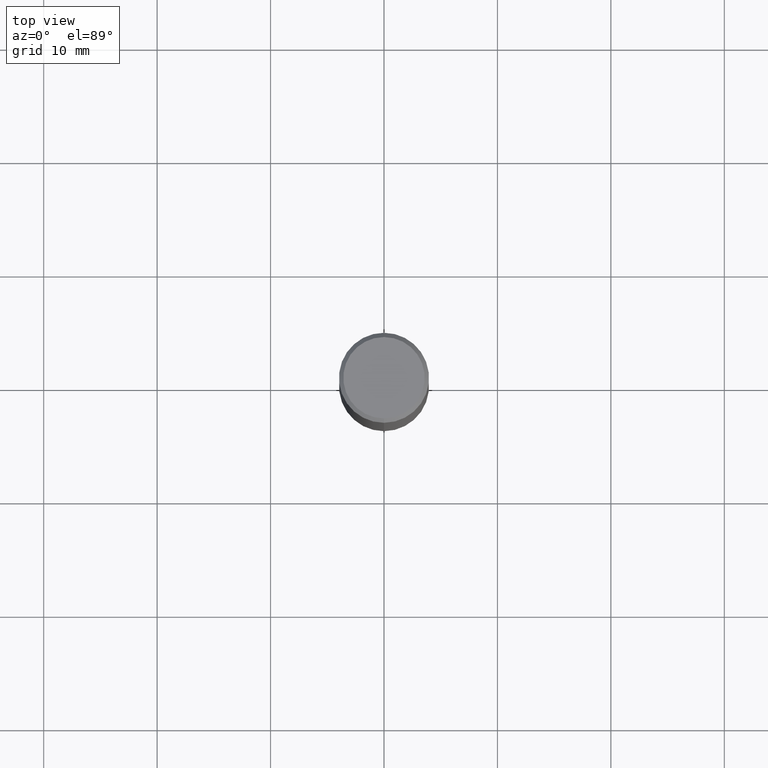
[diagram: clean part render]
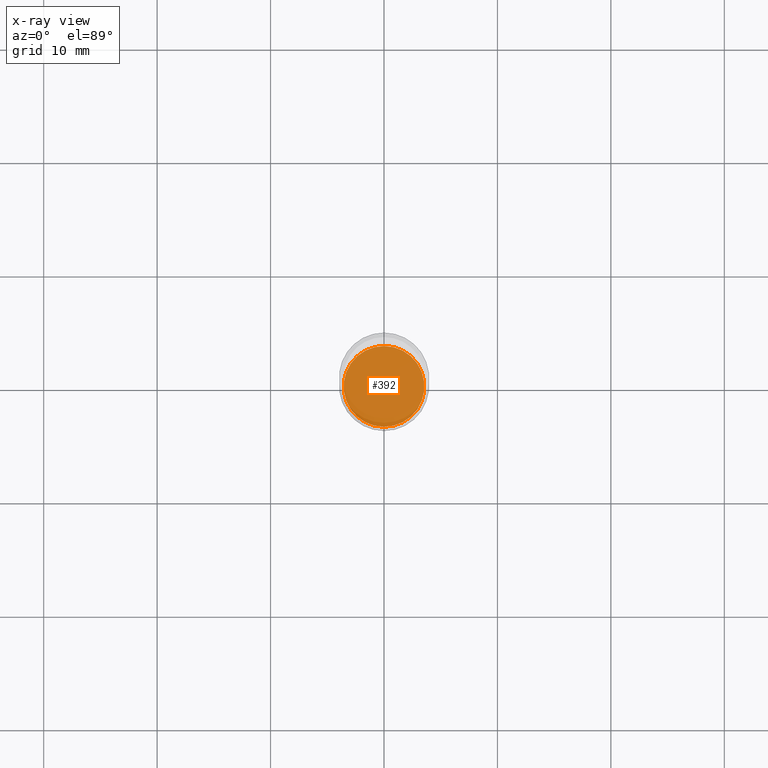
[diagram: x-ray — body ghosted, one internal face saturated and labeled with its STEP entity id]
A machine part, top view, then the same camera in x-ray: the body is ghosted and one INTERNAL B-rep face — a face not visible from any outside direction — is saturated and labeled: STEP entity #392.
In plain terms, the highlighted planar face has unit normal (-0, 0, 1).
Its self-contained STEP definition (entity closure, byte-faithful):
#20 = DIRECTION ( 'NONE',  ( -6.982962677686265922E-15, -1.000000000000000000, 3.899854380677035588E-15 ) ) ;
#31 = DIRECTION ( 'NONE',  ( -2.445350919548012662E-29, 3.491650159217197762E-15, 1.000000000000000000 ) ) ;
#33 = AXIS2_PLACEMENT_3D ( 'NONE', #455, #291, #20 ) ;
#39 = CARTESIAN_POINT ( 'NONE',  ( -9.783130711438031058E-16, -0.1401000000000061085, -1.749999999999999556 ) ) ;
#45 = VERTEX_POINT ( 'NONE', #173 ) ;
#76 = DIRECTION ( 'NONE',  ( -2.445350919548012382E-29, 3.491650159217197762E-15, 1.000000000000000000 ) ) ;
#100 = CIRCLE ( 'NONE', #166, 0.1401000000000000023 ) ;
#111 = ORIENTED_EDGE ( 'NONE', *, *, #147, .F. ) ;
#122 = EDGE_CURVE ( 'NONE', #45, #410, #481, .T. ) ;
#125 = DIRECTION ( 'NONE',  ( -6.982962677686265922E-15, -1.000000000000000000, 3.491650159217197762E-15 ) ) ;
#147 = EDGE_CURVE ( 'NONE', #410, #45, #100, .T. ) ;
#148 = FACE_OUTER_BOUND ( 'NONE', #326, .T. ) ;
#166 = AXIS2_PLACEMENT_3D ( 'NONE', #503, #31, #251 ) ;
#173 = CARTESIAN_POINT ( 'NONE',  ( 9.972467296393428329E-16, 0.1400999999999938961, -1.750000000000000666 ) ) ;
#229 = AXIS2_PLACEMENT_3D ( 'NONE', #299, #76, #125 ) ;
#251 = DIRECTION ( 'NONE',  ( -6.982962677686265922E-15, -1.000000000000000000, 3.899854380677035588E-15 ) ) ;
#291 = DIRECTION ( 'NONE',  ( -2.445350919548012662E-29, 3.491650159217197762E-15, 1.000000000000000000 ) ) ;
#298 = ORIENTED_EDGE ( 'NONE', *, *, #122, .F. ) ;
#299 = CARTESIAN_POINT ( 'NONE',  ( 4.279364109209022580E-29, -6.110387778630096380E-15, -1.750000000000000222 ) ) ;
#326 = EDGE_LOOP ( 'NONE', ( #111, #298 ) ) ;
#358 = PLANE ( 'NONE',  #229 ) ;
#392 = ADVANCED_FACE ( 'NONE', ( #148 ), #358, .F. ) ;
#410 = VERTEX_POINT ( 'NONE', #39 ) ;
#455 = CARTESIAN_POINT ( 'NONE',  ( 4.279364109209022580E-29, -6.110387778630096380E-15, -1.750000000000000222 ) ) ;
#481 = CIRCLE ( 'NONE', #33, 0.1401000000000000023 ) ;
#503 = CARTESIAN_POINT ( 'NONE',  ( 4.279364109209022580E-29, -6.110387778630096380E-15, -1.750000000000000222 ) ) ;